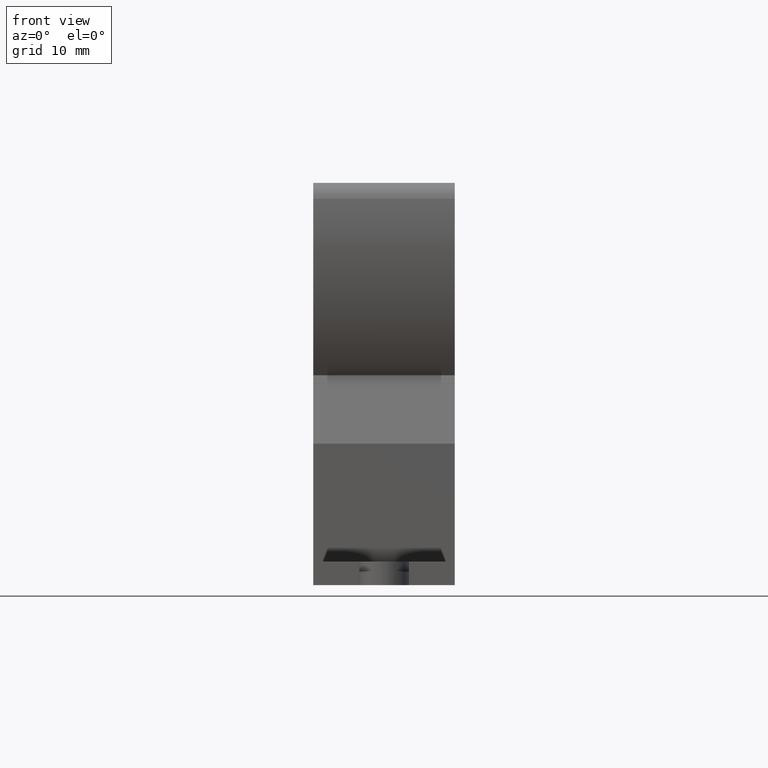
[diagram: clean part render]
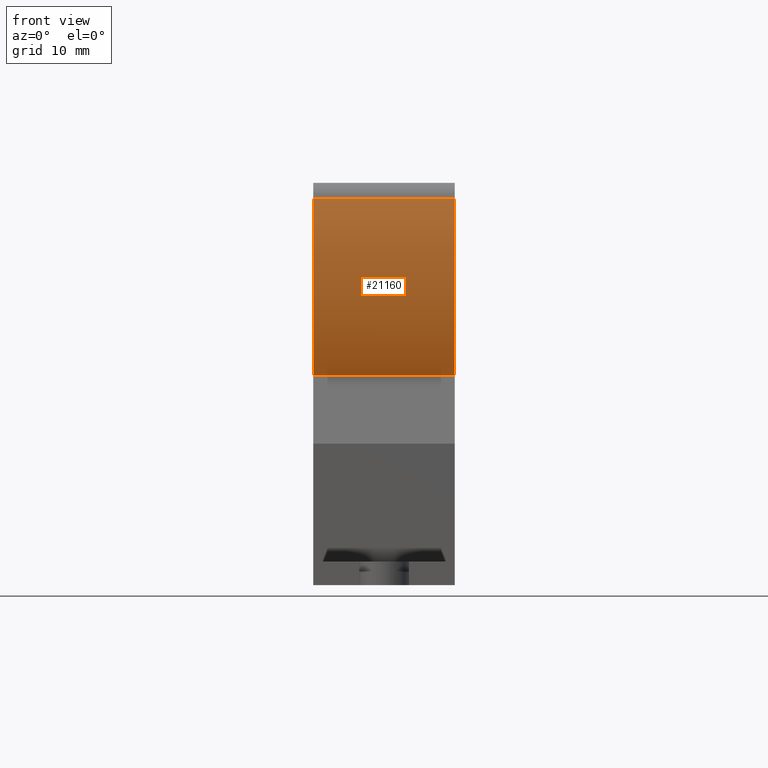
[diagram: same view with one face highlighted and labeled with its STEP entity id]
A machine part, front view. The second image highlights one B-rep face of the part: STEP entity #21160.
In plain terms, the highlighted cylindrical surface (partial cylindrical patch) has radius 23.25 mm, axis along (1, 0, 0).
Its self-contained STEP definition (entity closure, byte-faithful):
#2080=CARTESIAN_POINT('',(-18.456137274192,-14.6103942615365,
-7.49999999999993));
#2090=VERTEX_POINT('',#2080);
#5400=CARTESIAN_POINT('',(-22.1939098507103,4.08775164675002,
-7.49999999999993));
#5410=VERTEX_POINT('',#5400);
#5440=CARTESIAN_POINT('',(0.468877354187137,-1.10460582414292,
-7.49999999999993));
#5450=DIRECTION('',(0.,0.,-1.));
#5460=DIRECTION('',(1.,0.,0.));
#5470=AXIS2_PLACEMENT_3D('',#5440,#5450,#5460);
#5480=CIRCLE('',#5470,23.25);
#5490=EDGE_CURVE('',#2090,#5410,#5480,.T.);
#6050=CARTESIAN_POINT('',(0.468877354187137,-1.10460582414292,
7.50000000000007));
#6060=DIRECTION('',(0.,0.,1.));
#6070=DIRECTION('',(1.,0.,0.));
#6080=AXIS2_PLACEMENT_3D('',#6050,#6060,#6070);
#6090=CIRCLE('',#6080,23.25);
#6100=CARTESIAN_POINT('',(-22.1939098507103,4.08775164675015,
7.50000000000007));
#6110=VERTEX_POINT('',#6100);
#6120=CARTESIAN_POINT('',(-18.456137274192,-14.6103942615365,
7.50000000000007));
#6130=VERTEX_POINT('',#6120);
#6140=EDGE_CURVE('',#6110,#6130,#6090,.T.);
#20810=CARTESIAN_POINT('',(-22.1939098507102,4.08775164675011,
-7.49999999999993));
#20820=DIRECTION('',(0.,0.,1.));
#20830=VECTOR('',#20820,1.);
#20840=LINE('',#20810,#20830);
#20850=EDGE_CURVE('',#5410,#6110,#20840,.T.);
#21000=CARTESIAN_POINT('',(0.468877354187137,-1.10460582414292,
-7.49999999999993));
#21010=DIRECTION('',(0.,0.,1.));
#21020=DIRECTION('',(1.,0.,0.));
#21030=AXIS2_PLACEMENT_3D('',#21000,#21010,#21020);
#21040=CYLINDRICAL_SURFACE('',#21030,23.25);
#21050=CARTESIAN_POINT('',(-18.456137274192,-14.6103942615365,
-7.49999999999993));
#21060=DIRECTION('',(0.,0.,1.));
#21070=VECTOR('',#21060,1.);
#21080=LINE('',#21050,#21070);
#21090=EDGE_CURVE('',#2090,#6130,#21080,.T.);
#21100=ORIENTED_EDGE('',*,*,#21090,.T.);
#21110=ORIENTED_EDGE('',*,*,#5490,.F.);
#21120=ORIENTED_EDGE('',*,*,#20850,.F.);
#21130=ORIENTED_EDGE('',*,*,#6140,.F.);
#21140=EDGE_LOOP('',(#21130,#21120,#21110,#21100));
#21150=FACE_OUTER_BOUND('',#21140,.T.);
#21160=ADVANCED_FACE('',(#21150),#21040,.T.);